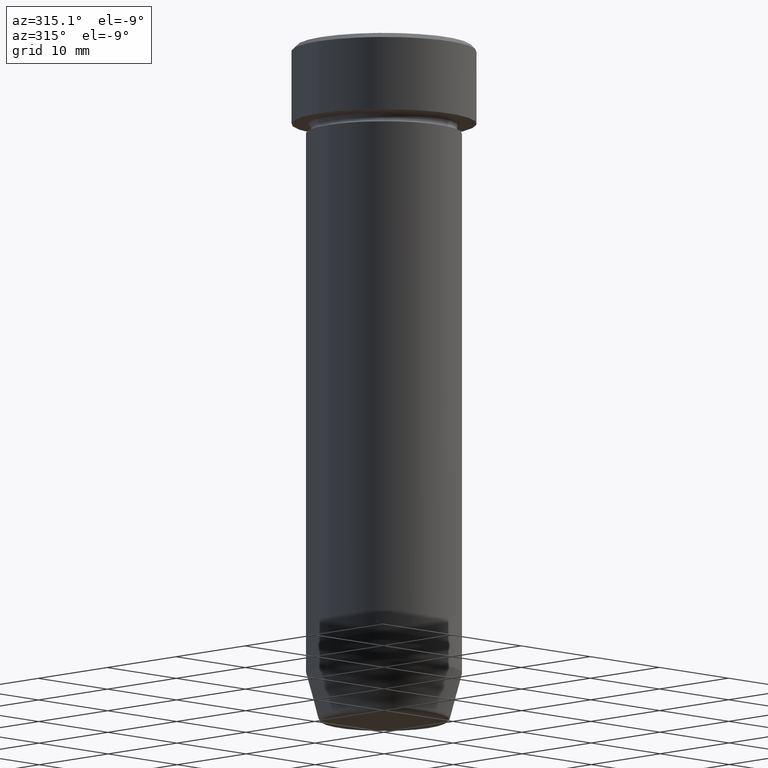
[diagram: clean part render]
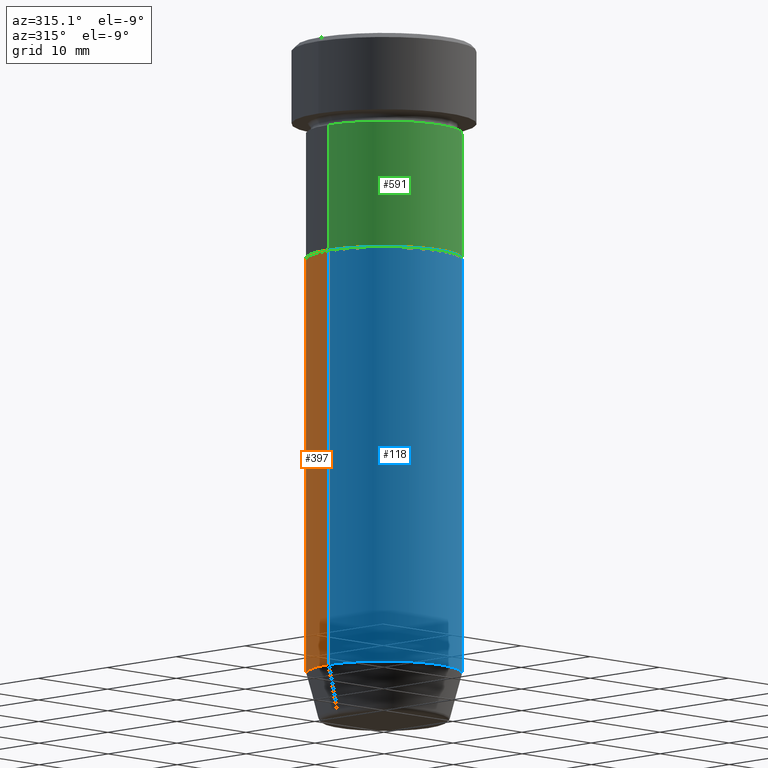
[diagram: same view with three faces highlighted in distinct colors, each labeled with its STEP entity id]
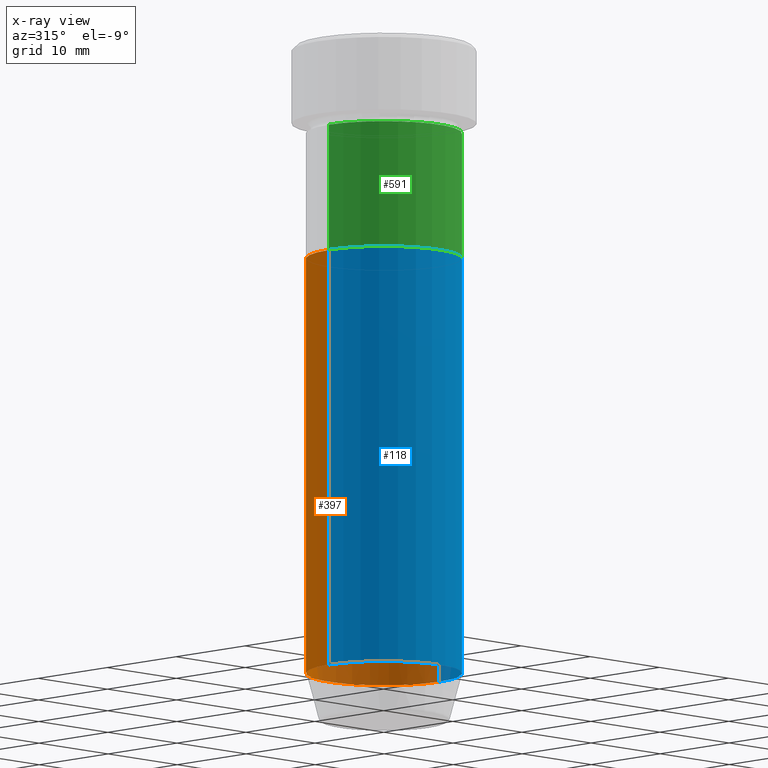
[diagram: x-ray of the same camera — body ghosted, the three highlighted faces saturated]
A machine part, auxiliary view with three faces highlighted in distinct colors.
The next image is the same camera in x-ray (body ghosted, the three faces saturated) — at least one of them is partly hidden behind the body in this view.
Their STEP definitions:

[orange] entity #397 — the highlighted cylindrical surface (partial cylindrical patch) has radius 8 mm, axis along (-0, -0, 1).
#30 = CARTESIAN_POINT ( 'NONE',  ( 0.000000000000000000, 0.000000000000000000, 0.000000000000000000 ) ) ;
#31 = VECTOR ( 'NONE', #511, 1000.000000000000000 ) ;
#37 = CARTESIAN_POINT ( 'NONE',  ( 8.000000000000000000, 0.000000000000000000, 0.000000000000000000 ) ) ;
#61 = EDGE_CURVE ( 'NONE', #498, #188, #453, .T. ) ;
#79 = DIRECTION ( 'NONE',  ( 1.000000000000000000, 0.000000000000000000, 0.000000000000000000 ) ) ;
#112 = CARTESIAN_POINT ( 'NONE',  ( 8.000000000000000000, 0.000000000000000000, -22.00000000000000000 ) ) ;
#124 = CARTESIAN_POINT ( 'NONE',  ( 8.000000000000000000, 0.000000000000000000, -65.00000000000000000 ) ) ;
#131 = ORIENTED_EDGE ( 'NONE', *, *, #577, .T. ) ;
#171 = VERTEX_POINT ( 'NONE', #124 ) ;
#178 = AXIS2_PLACEMENT_3D ( 'NONE', #492, #531, #79 ) ;
#188 = VERTEX_POINT ( 'NONE', #220 ) ;
#191 = DIRECTION ( 'NONE',  ( 1.000000000000000000, 0.000000000000000000, 0.000000000000000000 ) ) ;
#199 = DIRECTION ( 'NONE',  ( -0.000000000000000000, -0.000000000000000000, 1.000000000000000000 ) ) ;
#210 = DIRECTION ( 'NONE',  ( -0.000000000000000000, -0.000000000000000000, 1.000000000000000000 ) ) ;
#214 = AXIS2_PLACEMENT_3D ( 'NONE', #319, #410, #191 ) ;
#220 = CARTESIAN_POINT ( 'NONE',  ( -8.000000000000000000, 9.797174393178825657E-16, -22.00000000000000000 ) ) ;
#226 = CARTESIAN_POINT ( 'NONE',  ( -8.000000000000000000, 9.797174393178825657E-16, 0.000000000000000000 ) ) ;
#256 = VERTEX_POINT ( 'NONE', #379 ) ;
#274 = ORIENTED_EDGE ( 'NONE', *, *, #355, .T. ) ;
#275 = LINE ( 'NONE', #226, #31 ) ;
#290 = DIRECTION ( 'NONE',  ( 1.000000000000000000, 0.000000000000000000, 0.000000000000000000 ) ) ;
#294 = ORIENTED_EDGE ( 'NONE', *, *, #424, .F. ) ;
#319 = CARTESIAN_POINT ( 'NONE',  ( 0.000000000000000000, 0.000000000000000000, -65.00000000000000000 ) ) ;
#326 = VECTOR ( 'NONE', #210, 1000.000000000000000 ) ;
#352 = FACE_OUTER_BOUND ( 'NONE', #364, .T. ) ;
#355 = EDGE_CURVE ( 'NONE', #171, #256, #440, .T. ) ;
#357 = AXIS2_PLACEMENT_3D ( 'NONE', #30, #199, #290 ) ;
#364 = EDGE_LOOP ( 'NONE', ( #274, #131, #432, #294 ) ) ;
#379 = CARTESIAN_POINT ( 'NONE',  ( -8.000000000000000000, 9.797174393178825657E-16, -65.00000000000000000 ) ) ;
#397 = ADVANCED_FACE ( 'NONE', ( #352 ), #573, .T. ) ;
#405 = LINE ( 'NONE', #37, #326 ) ;
#410 = DIRECTION ( 'NONE',  ( -0.000000000000000000, -0.000000000000000000, 1.000000000000000000 ) ) ;
#424 = EDGE_CURVE ( 'NONE', #171, #498, #405, .T. ) ;
#432 = ORIENTED_EDGE ( 'NONE', *, *, #61, .F. ) ;
#440 = CIRCLE ( 'NONE', #214, 8.000000000000000000 ) ;
#453 = CIRCLE ( 'NONE', #178, 8.000000000000000000 ) ;
#492 = CARTESIAN_POINT ( 'NONE',  ( 0.000000000000000000, 0.000000000000000000, -22.00000000000000000 ) ) ;
#498 = VERTEX_POINT ( 'NONE', #112 ) ;
#511 = DIRECTION ( 'NONE',  ( -0.000000000000000000, -0.000000000000000000, 1.000000000000000000 ) ) ;
#531 = DIRECTION ( 'NONE',  ( -0.000000000000000000, -0.000000000000000000, 1.000000000000000000 ) ) ;
#573 = CYLINDRICAL_SURFACE ( 'NONE', #357, 8.000000000000000000 ) ;
#577 = EDGE_CURVE ( 'NONE', #256, #188, #275, .T. ) ;

[blue] entity #118 — the highlighted cylindrical surface (partial cylindrical patch) has radius 8 mm, axis along (-0, -0, 1).
#11 = ORIENTED_EDGE ( 'NONE', *, *, #424, .T. ) ;
#12 = CYLINDRICAL_SURFACE ( 'NONE', #425, 8.000000000000000000 ) ;
#29 = DIRECTION ( 'NONE',  ( 1.000000000000000000, 0.000000000000000000, 0.000000000000000000 ) ) ;
#31 = VECTOR ( 'NONE', #511, 1000.000000000000000 ) ;
#37 = CARTESIAN_POINT ( 'NONE',  ( 8.000000000000000000, 0.000000000000000000, 0.000000000000000000 ) ) ;
#59 = AXIS2_PLACEMENT_3D ( 'NONE', #532, #528, #29 ) ;
#74 = CARTESIAN_POINT ( 'NONE',  ( 0.000000000000000000, 0.000000000000000000, -65.00000000000000000 ) ) ;
#93 = AXIS2_PLACEMENT_3D ( 'NONE', #74, #250, #479 ) ;
#112 = CARTESIAN_POINT ( 'NONE',  ( 8.000000000000000000, 0.000000000000000000, -22.00000000000000000 ) ) ;
#118 = ADVANCED_FACE ( 'NONE', ( #433 ), #12, .T. ) ;
#124 = CARTESIAN_POINT ( 'NONE',  ( 8.000000000000000000, 0.000000000000000000, -65.00000000000000000 ) ) ;
#171 = VERTEX_POINT ( 'NONE', #124 ) ;
#188 = VERTEX_POINT ( 'NONE', #220 ) ;
#189 = CARTESIAN_POINT ( 'NONE',  ( 0.000000000000000000, 0.000000000000000000, 0.000000000000000000 ) ) ;
#197 = ORIENTED_EDGE ( 'NONE', *, *, #266, .F. ) ;
#210 = DIRECTION ( 'NONE',  ( -0.000000000000000000, -0.000000000000000000, 1.000000000000000000 ) ) ;
#220 = CARTESIAN_POINT ( 'NONE',  ( -8.000000000000000000, 9.797174393178825657E-16, -22.00000000000000000 ) ) ;
#226 = CARTESIAN_POINT ( 'NONE',  ( -8.000000000000000000, 9.797174393178825657E-16, 0.000000000000000000 ) ) ;
#250 = DIRECTION ( 'NONE',  ( -0.000000000000000000, -0.000000000000000000, 1.000000000000000000 ) ) ;
#256 = VERTEX_POINT ( 'NONE', #379 ) ;
#266 = EDGE_CURVE ( 'NONE', #188, #498, #597, .T. ) ;
#275 = LINE ( 'NONE', #226, #31 ) ;
#326 = VECTOR ( 'NONE', #210, 1000.000000000000000 ) ;
#346 = DIRECTION ( 'NONE',  ( 1.000000000000000000, 0.000000000000000000, 0.000000000000000000 ) ) ;
#375 = ORIENTED_EDGE ( 'NONE', *, *, #472, .T. ) ;
#379 = CARTESIAN_POINT ( 'NONE',  ( -8.000000000000000000, 9.797174393178825657E-16, -65.00000000000000000 ) ) ;
#402 = DIRECTION ( 'NONE',  ( -0.000000000000000000, -0.000000000000000000, 1.000000000000000000 ) ) ;
#405 = LINE ( 'NONE', #37, #326 ) ;
#424 = EDGE_CURVE ( 'NONE', #171, #498, #405, .T. ) ;
#425 = AXIS2_PLACEMENT_3D ( 'NONE', #189, #402, #346 ) ;
#433 = FACE_OUTER_BOUND ( 'NONE', #550, .T. ) ;
#460 = ORIENTED_EDGE ( 'NONE', *, *, #577, .F. ) ;
#472 = EDGE_CURVE ( 'NONE', #256, #171, #502, .T. ) ;
#479 = DIRECTION ( 'NONE',  ( 1.000000000000000000, 0.000000000000000000, 0.000000000000000000 ) ) ;
#498 = VERTEX_POINT ( 'NONE', #112 ) ;
#502 = CIRCLE ( 'NONE', #93, 8.000000000000000000 ) ;
#511 = DIRECTION ( 'NONE',  ( -0.000000000000000000, -0.000000000000000000, 1.000000000000000000 ) ) ;
#528 = DIRECTION ( 'NONE',  ( -0.000000000000000000, -0.000000000000000000, 1.000000000000000000 ) ) ;
#532 = CARTESIAN_POINT ( 'NONE',  ( 0.000000000000000000, 0.000000000000000000, -22.00000000000000000 ) ) ;
#550 = EDGE_LOOP ( 'NONE', ( #460, #375, #11, #197 ) ) ;
#577 = EDGE_CURVE ( 'NONE', #256, #188, #275, .T. ) ;
#597 = CIRCLE ( 'NONE', #59, 8.000000000000000000 ) ;

[green] entity #591 — the highlighted cylindrical surface (partial cylindrical patch) has radius 8 mm, axis along (-0, -0, 1).
#1 = CARTESIAN_POINT ( 'NONE',  ( 0.000000000000000000, 0.000000000000000000, 0.000000000000000000 ) ) ;
#6 = VERTEX_POINT ( 'NONE', #561 ) ;
#21 = LINE ( 'NONE', #195, #298 ) ;
#25 = DIRECTION ( 'NONE',  ( -0.000000000000000000, -0.000000000000000000, 1.000000000000000000 ) ) ;
#62 = CARTESIAN_POINT ( 'NONE',  ( 0.000000000000000000, 0.000000000000000000, -9.000000000000001776 ) ) ;
#96 = EDGE_CURVE ( 'NONE', #240, #334, #233, .T. ) ;
#107 = DIRECTION ( 'NONE',  ( 1.000000000000000000, 0.000000000000000000, 0.000000000000000000 ) ) ;
#117 = CARTESIAN_POINT ( 'NONE',  ( -8.000000000000000000, 9.797174393178825657E-16, 0.000000000000000000 ) ) ;
#119 = AXIS2_PLACEMENT_3D ( 'NONE', #327, #383, #521 ) ;
#123 = CARTESIAN_POINT ( 'NONE',  ( 8.000000000000000000, 0.000000000000000000, -9.000000000000001776 ) ) ;
#129 = DIRECTION ( 'NONE',  ( 1.000000000000000000, 0.000000000000000000, 0.000000000000000000 ) ) ;
#136 = CYLINDRICAL_SURFACE ( 'NONE', #427, 8.000000000000000000 ) ;
#137 = VERTEX_POINT ( 'NONE', #185 ) ;
#185 = CARTESIAN_POINT ( 'NONE',  ( -8.000000000000000000, 9.797174393178825657E-16, -22.00000000000000000 ) ) ;
#190 = VECTOR ( 'NONE', #311, 1000.000000000000000 ) ;
#195 = CARTESIAN_POINT ( 'NONE',  ( 8.000000000000000000, 0.000000000000000000, 0.000000000000000000 ) ) ;
#233 = CIRCLE ( 'NONE', #450, 8.000000000000000000 ) ;
#240 = VERTEX_POINT ( 'NONE', #385 ) ;
#271 = ORIENTED_EDGE ( 'NONE', *, *, #413, .F. ) ;
#298 = VECTOR ( 'NONE', #398, 1000.000000000000000 ) ;
#311 = DIRECTION ( 'NONE',  ( -0.000000000000000000, -0.000000000000000000, 1.000000000000000000 ) ) ;
#327 = CARTESIAN_POINT ( 'NONE',  ( 0.000000000000000000, 0.000000000000000000, -22.00000000000000000 ) ) ;
#334 = VERTEX_POINT ( 'NONE', #123 ) ;
#338 = ORIENTED_EDGE ( 'NONE', *, *, #96, .F. ) ;
#353 = EDGE_LOOP ( 'NONE', ( #271, #555, #582, #338 ) ) ;
#383 = DIRECTION ( 'NONE',  ( -0.000000000000000000, -0.000000000000000000, 1.000000000000000000 ) ) ;
#385 = CARTESIAN_POINT ( 'NONE',  ( -8.000000000000000000, 9.797174393178825657E-16, -9.000000000000001776 ) ) ;
#398 = DIRECTION ( 'NONE',  ( -0.000000000000000000, -0.000000000000000000, 1.000000000000000000 ) ) ;
#413 = EDGE_CURVE ( 'NONE', #137, #240, #542, .T. ) ;
#418 = FACE_OUTER_BOUND ( 'NONE', #353, .T. ) ;
#427 = AXIS2_PLACEMENT_3D ( 'NONE', #1, #516, #129 ) ;
#450 = AXIS2_PLACEMENT_3D ( 'NONE', #62, #25, #107 ) ;
#457 = CIRCLE ( 'NONE', #119, 8.000000000000000000 ) ;
#516 = DIRECTION ( 'NONE',  ( -0.000000000000000000, -0.000000000000000000, 1.000000000000000000 ) ) ;
#521 = DIRECTION ( 'NONE',  ( 1.000000000000000000, 0.000000000000000000, 0.000000000000000000 ) ) ;
#537 = EDGE_CURVE ( 'NONE', #6, #334, #21, .T. ) ;
#542 = LINE ( 'NONE', #117, #190 ) ;
#555 = ORIENTED_EDGE ( 'NONE', *, *, #564, .T. ) ;
#561 = CARTESIAN_POINT ( 'NONE',  ( 8.000000000000000000, 0.000000000000000000, -22.00000000000000000 ) ) ;
#564 = EDGE_CURVE ( 'NONE', #137, #6, #457, .T. ) ;
#582 = ORIENTED_EDGE ( 'NONE', *, *, #537, .T. ) ;
#591 = ADVANCED_FACE ( 'NONE', ( #418 ), #136, .T. ) ;